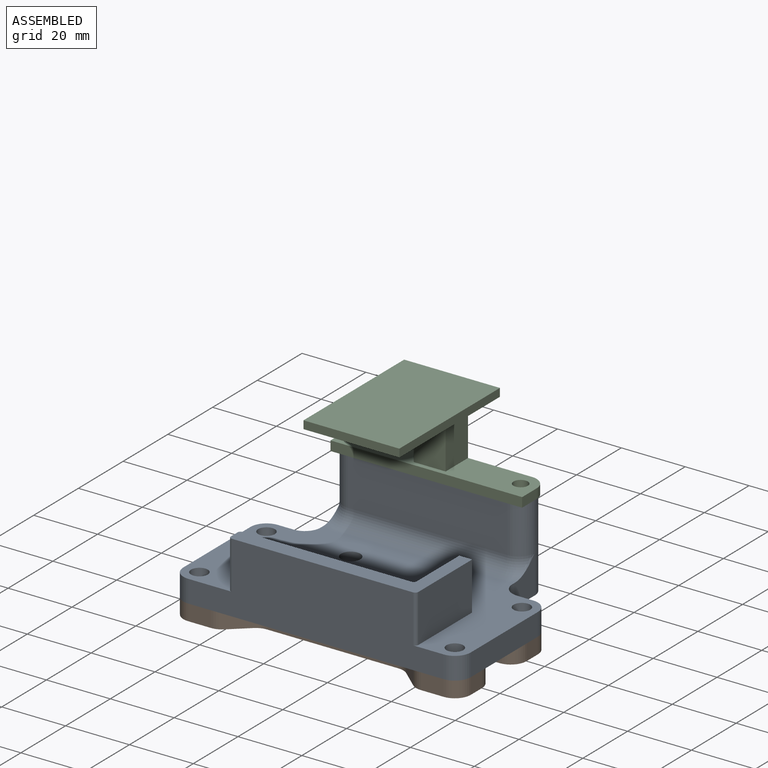
[diagram: assembled view]
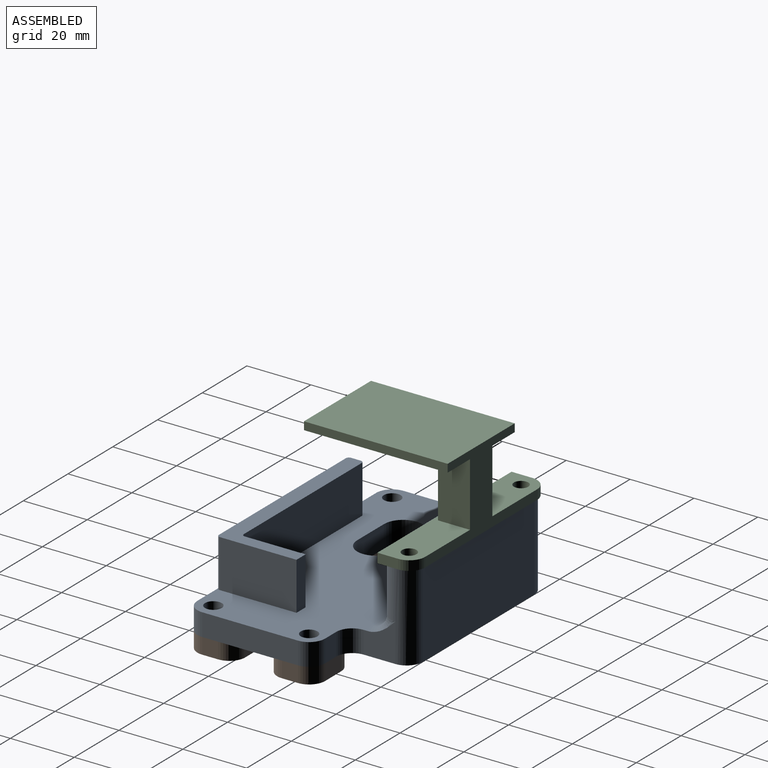
[diagram: assembled view, second angle]
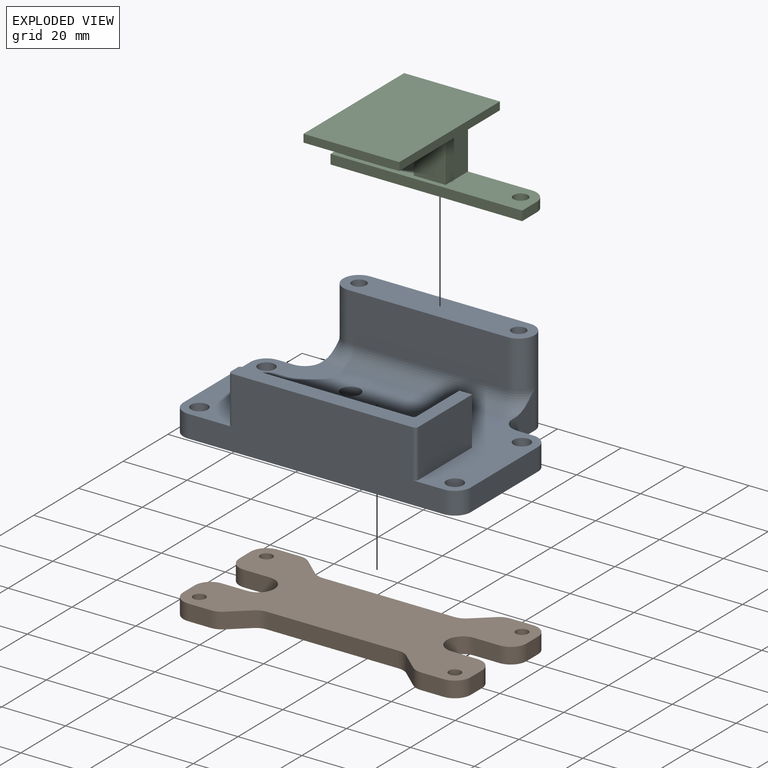
[diagram: exploded view]
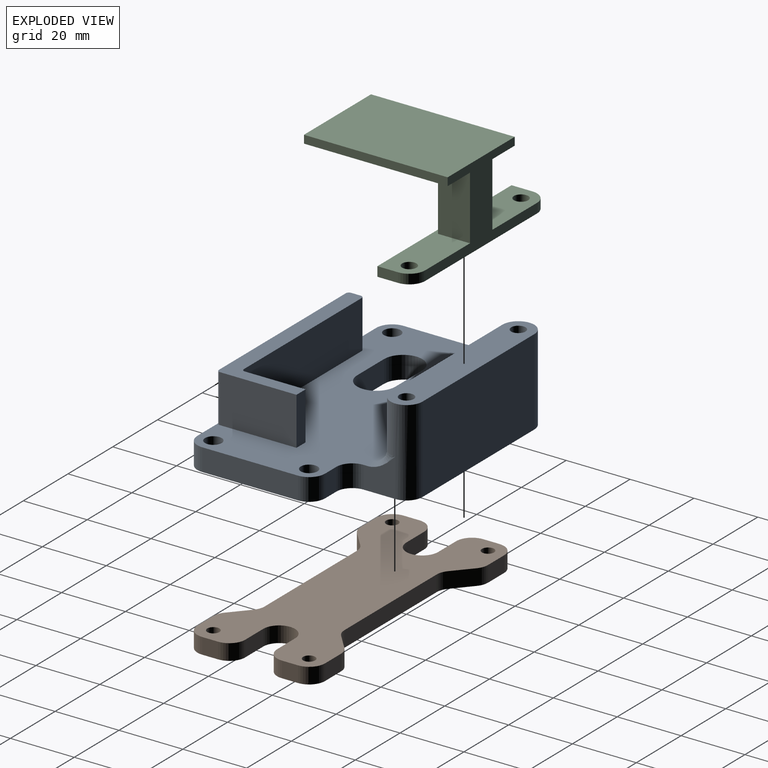
[diagram: exploded view, second angle]
ASSEMBLY  parts=3 mates=3
PART A: 46 faces, bbox 90x60x27 mm
  f0: cylinder r=3mm len=6mm, axis (0,0,1), area 37.7mm2, adj f9,f44
  f1: plane 30x7mm, normal (1,0,0), area 210mm2, adj f9,f10,f11,f13
  f2: plane 7x5mm, normal (0,1,0), area 35mm2, adj f9,f10,f11,f20
  f3: plane 12x10mm, normal (1,0,0), area 85mm2, adj f9,f10,f20,f27,f41
  f4: plane 50x27mm, normal (0,1,0), area 1350mm2, adj f10,f27,f28,f36
  f5: plane 12x10mm, normal (-1,0,0), area 85mm2, adj f9,f10,f19,f28,f43
  f6: plane 7x5mm, normal (0,1,0), area 35mm2, adj f9,f10,f14,f19
  f7: plane 30x7mm, normal (-1,0,0), area 210mm2, adj f9,f10,f12,f14
  f8: plane 80x22mm, normal (0,-1,0), area 1411.2mm2, adj f9,f10,f12,f13,f26,f32,f34
  f9: plane 90x46.34mm, normal (0,0,1), area 3148.3mm2, adj f0,f1,f2,f3,f5,f6,f7,f8
  f10: plane 90x60mm, normal (0,0,-1), area 4226.3mm2, adj f1,f2,f3,f4,f5,f6,f7,f8
  f11: cylinder r=5mm len=7mm, axis (0,0,-1), area 55mm2, adj f1,f2,f9,f10
  f12: cylinder r=5mm len=7mm, axis (0,0,-1), area 55mm2, adj f7,f8,f9,f10
  f13: cylinder r=5mm len=7mm, axis (0,0,1), area 55mm2, adj f1,f8,f9,f10
  f14: cylinder r=5mm len=7mm, axis (0,0,1), area 55mm2, adj f6,f7,f9,f10
  f15: cylinder r=2.62mm len=7mm, axis (0,0,1), area 115.5mm2, adj f9,f10
  f16: cylinder r=2.62mm len=7mm, axis (0,0,1), area 115.5mm2, adj f9,f10
  f17: cylinder r=2.62mm len=7mm, axis (0,0,1), area 115.5mm2, adj f9,f10
  f18: cylinder r=2.62mm len=7mm, axis (0,0,1), area 115.5mm2, adj f9,f10
  f19: cylinder r=5mm len=7mm, axis (0,0,1), area 55mm2, adj f5,f6,f9,f10
  f20: cylinder r=5mm len=7mm, axis (0,0,-1), area 55mm2, adj f2,f3,f9,f10
  f21: plane 52.75x15mm, normal (0,1,0), area 791.2mm2, adj f9,f26,f31,f33
  f22: plane 15x3mm, normal (-1,0,0), area 45mm2, adj f9,f26,f31,f32
  f23: plane 24x15mm, normal (1,0,0), area 360mm2, adj f9,f24,f26,f34
  f24: plane 15x4mm, normal (0,1,0), area 60mm2, adj f9,f23,f25,f26
  f25: plane 19x15mm, normal (-1,0,0), area 285mm2, adj f9,f24,f26,f33
  f26: plane 58.75x25mm, normal (0,0,1), area 373.3mm2, adj f8,f21,f22,f23,f24,f25,f31,f32
  f27: cylinder r=5mm len=27mm, axis (0,0,1), area 329.9mm2, adj f3,f4,f10,f35,f36,f41
  f28: cylinder r=5mm len=27mm, axis (0,0,-1), area 329.9mm2, adj f4,f5,f10,f35,f36,f43
  f29: cylinder r=2.25mm len=27mm, axis (0,0,1), area 381.7mm2, adj f10,f36
  f30: cylinder r=2.25mm len=27mm, axis (0,0,1), area 381.7mm2, adj f10,f36
  f31: cylinder r=1mm len=15mm, axis (0,0,-1), area 23.6mm2, adj f9,f21,f22,f26
  f32: cylinder r=1mm len=15mm, axis (0,0,1), area 23.6mm2, adj f8,f9,f22,f26
  f33: cylinder r=1mm len=15mm, axis (0,0,1), area 23.6mm2, adj f9,f21,f25,f26
  f34: cylinder r=1mm len=15mm, axis (0,0,-1), area 23.6mm2, adj f8,f9,f23,f26
  f35: plane 50x15mm, normal (0,-1,0), area 750mm2, adj f27,f28,f36,f42
  f36: plane 60x10mm, normal (0,0,1), area 546.7mm2, adj f4,f27,f28,f29,f30,f35
  f37: cylinder r=6mm len=12mm, axis (0,0,1), area 131.9mm2, adj f9,f10,f38,f40
  f38: plane 12x7mm, normal (0,1,0), area 84mm2, adj f9,f10,f37,f39
  f39: cylinder r=6mm len=12mm, axis (0,0,1), area 131.9mm2, adj f9,f10,f38,f40
  f40: plane 12x7mm, normal (0,-1,0), area 84mm2, adj f9,f10,f37,f39
  f41: torus R=10mm, axis (0,0,1), area 47mm2, adj f3,f9,f27,f42
  f42: cylinder r=5mm len=50mm, axis (1,0,0), area 392.7mm2, adj f9,f35,f41,f43
  f43: torus R=10mm, axis (0,0,1), area 47mm2, adj f5,f9,f28,f42
  f44: plane 15x15mm, normal (0,0,-1), area 148.4mm2, adj f0,f45
  f45: cylinder r=7.5mm len=15mm, axis (0,0,-1), area 235.6mm2, adj f10,f44
PART B: 42 faces, bbox 90x40x5 mm
  f0: plane 5x5mm, normal (-1,0,0), area 25mm2, adj f2,f3,f11,f40
  f1: plane 5x5mm, normal (1,0,0), area 25mm2, adj f2,f3,f13,f38
  f2: plane 90x40mm, normal (0,0,1), area 2370.7mm2, adj f0,f1,f4,f5,f6,f7,f8,f9
  f3: plane 90x40mm, normal (0,0,-1), area 2370.7mm2, adj f0,f1,f4,f5,f6,f7,f8,f9
  f4: plane 7.11x5mm, normal (0,1,0), area 35.5mm2, adj f2,f3,f10,f30
  f5: plane 7.11x5mm, normal (0,-1,0), area 35.5mm2, adj f2,f3,f11,f28
  f6: plane 7.11x5mm, normal (0,1,0), area 35.5mm2, adj f2,f3,f12,f31
  f7: plane 5x5mm, normal (-1,0,0), area 25mm2, adj f2,f3,f10,f41
  f8: plane 7.11x5mm, normal (0,-1,0), area 35.5mm2, adj f2,f3,f13,f29
  f9: plane 5x5mm, normal (1,0,0), area 25mm2, adj f2,f3,f12,f39
  f10: cylinder r=5mm len=5mm, axis (0,0,1), area 39.3mm2, adj f2,f3,f4,f7
  f11: cylinder r=5mm len=5mm, axis (0,0,-1), area 39.3mm2, adj f0,f2,f3,f5
  f12: cylinder r=5mm len=5mm, axis (0,0,-1), area 39.3mm2, adj f2,f3,f6,f9
  f13: cylinder r=5mm len=5mm, axis (0,0,1), area 39.3mm2, adj f1,f2,f3,f8
  f14: cylinder r=1.9mm len=5mm, axis (0,0,1), area 59.7mm2, adj f2,f3
  f15: cylinder r=1.9mm len=5mm, axis (0,0,1), area 59.7mm2, adj f2,f3
  f16: cylinder r=1.9mm len=5mm, axis (0,0,1), area 59.7mm2, adj f2,f3
  f17: cylinder r=1.9mm len=5mm, axis (0,0,1), area 59.7mm2, adj f2,f3
  f18: plane 5.67x5mm, normal (0.66,-0.75,0), area 37.8mm2, adj f2,f3,f22,f28
  f19: plane 5.67x5mm, normal (-0.66,-0.75,0), area 37.8mm2, adj f2,f3,f20,f29
  f20: cylinder r=5mm len=5mm, axis (0,0,-1), area 18.1mm2, adj f2,f3,f19,f21
  f21: plane 41.22x5mm, normal (0,-1,0), area 206.1mm2, adj f2,f3,f20,f22
  f22: cylinder r=5mm len=5mm, axis (0,0,-1), area 18.1mm2, adj f2,f3,f18,f21
  f23: plane 5.67x5mm, normal (0.66,0.75,0), area 37.8mm2, adj f2,f3,f24,f30
  f24: cylinder r=5mm len=5mm, axis (0,0,-1), area 18.1mm2, adj f2,f3,f23,f25
  f25: plane 41.22x5mm, normal (0,1,0), area 206.1mm2, adj f2,f3,f24,f26
  f26: cylinder r=5mm len=5mm, axis (0,0,-1), area 18.1mm2, adj f2,f3,f25,f27
  f27: plane 5.67x5mm, normal (-0.66,0.75,0), area 37.8mm2, adj f2,f3,f26,f31
  f28: cylinder r=5mm len=5mm, axis (0,0,-1), area 18.1mm2, adj f2,f3,f5,f18
  f29: cylinder r=5mm len=5mm, axis (0,0,-1), area 18.1mm2, adj f2,f3,f8,f19
  f30: cylinder r=5mm len=5mm, axis (0,0,-1), area 18.1mm2, adj f2,f3,f4,f23
  f31: cylinder r=5mm len=5mm, axis (0,0,-1), area 18.1mm2, adj f2,f3,f6,f27
  f32: cylinder r=5mm len=10mm, axis (0,0,1), area 78.5mm2, adj f2,f3,f33,f34
  f33: plane 8x5mm, normal (0,1,0), area 40mm2, adj f2,f3,f32,f38
  f34: plane 8x5mm, normal (0,-1,0), area 40mm2, adj f2,f3,f32,f39
  f35: plane 8x5mm, normal (0,1,0), area 40mm2, adj f2,f3,f36,f40
  f36: cylinder r=5mm len=10mm, axis (0,0,1), area 78.5mm2, adj f2,f3,f35,f37
  f37: plane 8x5mm, normal (0,-1,0), area 40mm2, adj f2,f3,f36,f41
  f38: cylinder r=5mm len=5mm, axis (0,0,-1), area 39.3mm2, adj f1,f2,f3,f33
  f39: cylinder r=5mm len=5mm, axis (0,0,1), area 39.3mm2, adj f2,f3,f9,f34
  f40: cylinder r=5mm len=5mm, axis (0,0,-1), area 39.3mm2, adj f0,f2,f3,f35
  f41: cylinder r=5mm len=5mm, axis (0,0,1), area 39.3mm2, adj f2,f3,f7,f37
PART C: 18 faces, bbox 45x60x25.5 mm
  f0: plane 60x11.5mm, normal (0,0,1), area 547.5mm2, adj f2,f3,f4,f5,f11,f12,f13,f14
  f1: plane 60x11.5mm, normal (0,0,-1), area 647.5mm2, adj f5,f11,f12,f13,f14,f15,f16,f17
  f2: plane 20x10mm, normal (0,1,0), area 200mm2, adj f0,f3,f5,f10
  f3: plane 20x10mm, normal (-1,0,0), area 200mm2, adj f0,f2,f4,f10
  f4: plane 20x10mm, normal (0,-1,0), area 200mm2, adj f0,f3,f5,f10
  f5: plane 50x25.5mm, normal (1,0,0), area 425mm2, adj f0,f1,f2,f4,f6,f7,f9,f10
  f6: plane 45x2.5mm, normal (0,-1,0), area 112.5mm2, adj f5,f8,f9,f10
  f7: plane 45x2.5mm, normal (0,1,0), area 112.5mm2, adj f5,f8,f9,f10
  f8: plane 30x2.5mm, normal (-1,0,0), area 75mm2, adj f6,f7,f9,f10
  f9: plane 45x30mm, normal (0,0,1), area 1350mm2, adj f5,f6,f7,f8
  f10: plane 45x30mm, normal (0,0,-1), area 1250mm2, adj f2,f3,f4,f5,f6,f7,f8
  f11: plane 6.5x3mm, normal (0,-1,0), area 19.5mm2, adj f0,f1,f12,f15
  f12: plane 60x3mm, normal (-1,0,0), area 180mm2, adj f0,f1,f11,f13
  f13: plane 6.5x3mm, normal (0,1,0), area 19.5mm2, adj f0,f1,f12,f16
  f14: cylinder r=2.25mm len=4.5mm, axis (0,0,-1), area 42.4mm2, adj f0,f1
  f15: cylinder r=5mm len=5mm, axis (0,0,-1), area 23.6mm2, adj f0,f1,f5,f11
  f16: cylinder r=5mm len=5mm, axis (0,0,-1), area 23.6mm2, adj f0,f1,f5,f13
  f17: cylinder r=2.25mm len=4.5mm, axis (0,0,-1), area 42.4mm2, adj f0,f1
PLACE A t=(-0.79,-4,-7)mm
PLACE B t=(-0.79,-4,-12)mm
PLACE C rot(axis=(0,0,1),90deg) t=(-0.79,31.87,23)mm
MATE planar B.f2 <-> A.f10  axis (0,0,1) through (-0.79,-4,-7)mm
MATE fastened C.f1 <-> A.f36  axis (0,0,-1) through (-0.79,31,20)mm
MATE slider A.f12 <-> B.f11  axis (0,0,-1) through (-40.79,-19,-7)mm
